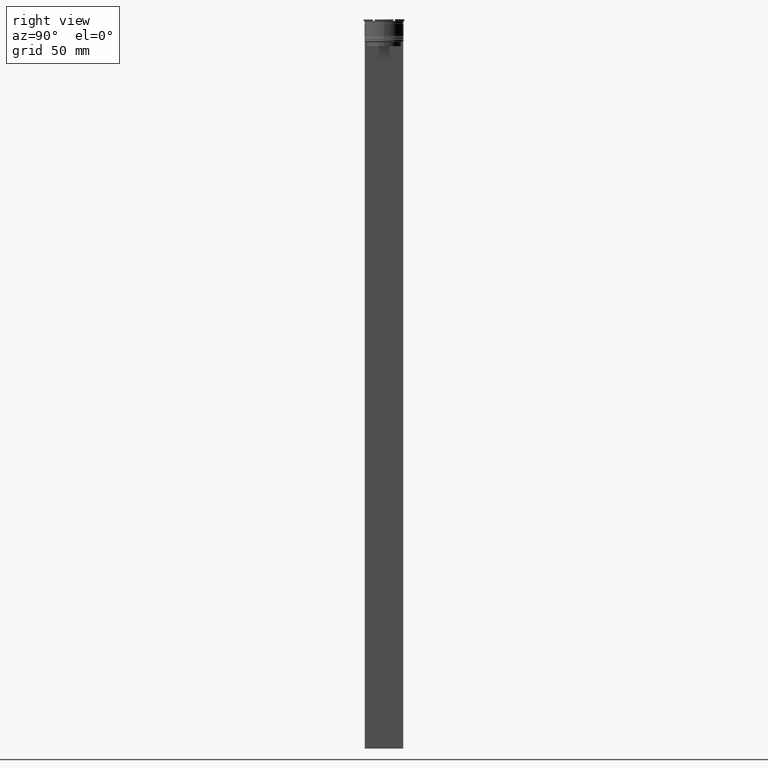
[diagram: clean part render]
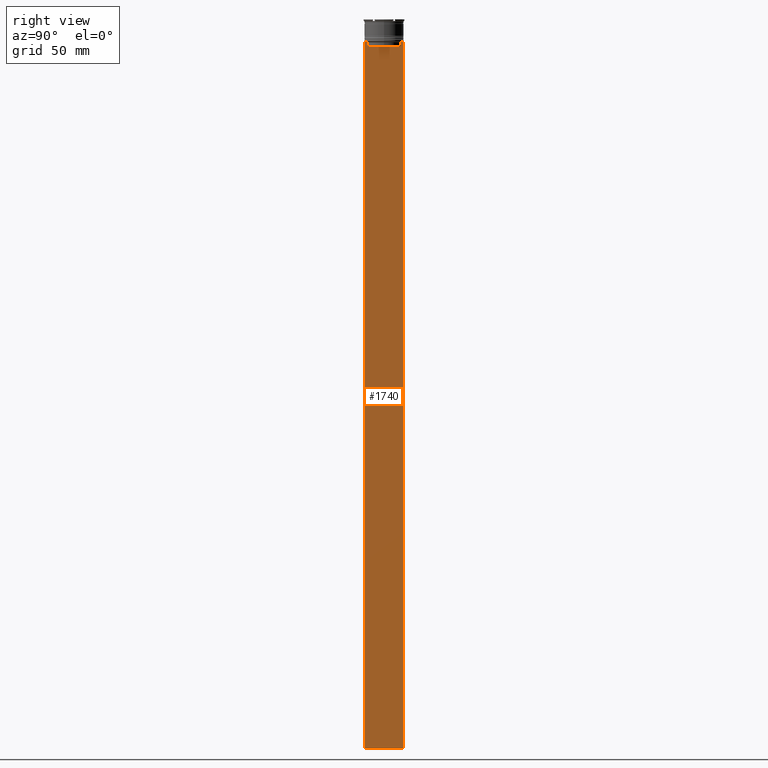
[diagram: same view with one face highlighted and labeled with its STEP entity id]
A machine part, right view. The second image highlights one B-rep face of the part: STEP entity #1740.
In plain terms, the highlighted planar face has unit normal (-1, 0, 0).
Its self-contained STEP definition (entity closure, byte-faithful):
#129 = VERTEX_POINT ( 'NONE', #724 ) ;
#168 = EDGE_CURVE ( 'NONE', #2728, #2398, #2310, .T. ) ;
#174 = CARTESIAN_POINT ( 'NONE',  ( 0.5000000000000002220, 10.88852607105296322, 0.000000000000000000 ) ) ;
#175 = CARTESIAN_POINT ( 'NONE',  ( 0.5000000000000002220, -10.88852607105296144, -17.00000000000000000 ) ) ;
#259 = VECTOR ( 'NONE', #679, 1000.000000000000000 ) ;
#280 = CARTESIAN_POINT ( 'NONE',  ( 0.5000000000000002220, 11.38902980942626719, -14.00000000000000178 ) ) ;
#289 = ORIENTED_EDGE ( 'NONE', *, *, #1927, .T. ) ;
#341 = CARTESIAN_POINT ( 'NONE',  ( 0.5000000000000002220, 12.24999999999999289, -14.00000000000000178 ) ) ;
#370 = LINE ( 'NONE', #2069, #756 ) ;
#404 = DIRECTION ( 'NONE',  ( 0.000000000000000000, -1.000000000000000000, 0.000000000000000000 ) ) ;
#472 = ORIENTED_EDGE ( 'NONE', *, *, #894, .T. ) ;
#480 = VERTEX_POINT ( 'NONE', #175 ) ;
#495 = CARTESIAN_POINT ( 'NONE',  ( 0.5000000000000002220, 10.88852607105296144, -17.00000000000000000 ) ) ;
#502 = EDGE_CURVE ( 'NONE', #1333, #1883, #867, .T. ) ;
#581 = ORIENTED_EDGE ( 'NONE', *, *, #1653, .T. ) ;
#609 = VECTOR ( 'NONE', #2724, 1000.000000000000000 ) ;
#617 = VECTOR ( 'NONE', #1195, 1000.000000000000000 ) ;
#620 = CARTESIAN_POINT ( 'NONE',  ( 0.5000000000000002220, 10.88852607105296322, -14.50000000000000000 ) ) ;
#628 = CARTESIAN_POINT ( 'NONE',  ( 0.5000000000000002220, 12.24999999999999289, 10.52039967047845792 ) ) ;
#648 = EDGE_CURVE ( 'NONE', #129, #2728, #1913, .T. ) ;
#656 = EDGE_LOOP ( 'NONE', ( #2348, #869, #2638, #1155, #581, #1534, #472, #1914, #289, #1100 ) ) ;
#679 = DIRECTION ( 'NONE',  ( 0.000000000000000000, 1.000000000000000000, 0.000000000000000000 ) ) ;
#710 = DIRECTION ( 'NONE',  ( 0.000000000000000000, -1.000000000000000000, 0.000000000000000000 ) ) ;
#722 = CARTESIAN_POINT ( 'NONE',  ( 0.5000000000000002220, 10.88852607105296322, -14.50000000000000000 ) ) ;
#724 = CARTESIAN_POINT ( 'NONE',  ( 0.5000000000000002220, 11.38902980942626719, -14.00000000000000178 ) ) ;
#732 = CARTESIAN_POINT ( 'NONE',  ( 0.5000000000000002220, -12.25000000000000711, 10.52039967047845792 ) ) ;
#756 = VECTOR ( 'NONE', #1223, 1000.000000000000000 ) ;
#858 = EDGE_CURVE ( 'NONE', #2100, #2347, #1188, .T. ) ;
#867 = LINE ( 'NONE', #628, #2009 ) ;
#869 = ORIENTED_EDGE ( 'NONE', *, *, #648, .T. ) ;
#891 = CARTESIAN_POINT ( 'NONE',  ( 0.5000000000000002220, -12.25000000000000711, -464.0000000000000000 ) ) ;
#894 = EDGE_CURVE ( 'NONE', #2578, #2100, #2541, .T. ) ;
#952 = B_SPLINE_CURVE_WITH_KNOTS ( 'NONE', 3,
 ( #1525, #2107, #1031, #1894 ),
 .UNSPECIFIED., .F., .F.,
 ( 4, 4 ),
 ( 0.05041323384703228633, 0.05112713601261608537 ),
 .UNSPECIFIED. ) ;
#953 = CARTESIAN_POINT ( 'NONE',  ( 0.5000000000000002220, -12.25000000000000711, -14.00000000000000178 ) ) ;
#965 = CARTESIAN_POINT ( 'NONE',  ( 0.5000000000000002220, -10.88852607105296322, -14.50000000000000000 ) ) ;
#1031 = CARTESIAN_POINT ( 'NONE',  ( 0.5000000000000002220, -11.22219891450652973, -14.16667035398018903 ) ) ;
#1040 = DIRECTION ( 'NONE',  ( 0.000000000000000000, 0.000000000000000000, -1.000000000000000000 ) ) ;
#1065 = VECTOR ( 'NONE', #404, 1000.000000000000000 ) ;
#1075 = DIRECTION ( 'NONE',  ( 0.000000000000000000, 0.000000000000000000, 1.000000000000000000 ) ) ;
#1100 = ORIENTED_EDGE ( 'NONE', *, *, #502, .F. ) ;
#1102 = CARTESIAN_POINT ( 'NONE',  ( 0.5000000000000002220, 11.22219891375843304, -14.16667035472756808 ) ) ;
#1129 = LINE ( 'NONE', #891, #259 ) ;
#1149 = CARTESIAN_POINT ( 'NONE',  ( 0.5000000000000002220, -12.25000000000000711, -464.0000000000000000 ) ) ;
#1155 = ORIENTED_EDGE ( 'NONE', *, *, #1480, .T. ) ;
#1172 = CARTESIAN_POINT ( 'NONE',  ( 0.5000000000000002220, 12.24999999999999289, -464.0000000000000000 ) ) ;
#1188 = LINE ( 'NONE', #732, #1379 ) ;
#1195 = DIRECTION ( 'NONE',  ( 0.000000000000000000, -1.000000000000000000, 0.000000000000000000 ) ) ;
#1197 = EDGE_CURVE ( 'NONE', #1333, #129, #2246, .T. ) ;
#1223 = DIRECTION ( 'NONE',  ( -0.000000000000000000, -0.000000000000000000, 1.000000000000000000 ) ) ;
#1231 = VERTEX_POINT ( 'NONE', #965 ) ;
#1233 = CARTESIAN_POINT ( 'NONE',  ( 0.5000000000000002220, -12.25000000000000711, -14.00000000000000178 ) ) ;
#1333 = VERTEX_POINT ( 'NONE', #341 ) ;
#1379 = VECTOR ( 'NONE', #1591, 1000.000000000000000 ) ;
#1480 = EDGE_CURVE ( 'NONE', #2398, #480, #2623, .T. ) ;
#1510 = PLANE ( 'NONE',  #1568 ) ;
#1525 = CARTESIAN_POINT ( 'NONE',  ( 0.5000000000000002220, -10.88852607105296322, -14.50000000000000000 ) ) ;
#1534 = ORIENTED_EDGE ( 'NONE', *, *, #2785, .T. ) ;
#1568 = AXIS2_PLACEMENT_3D ( 'NONE', #1964, #2349, #1075 ) ;
#1591 = DIRECTION ( 'NONE',  ( 0.000000000000000000, 0.000000000000000000, -1.000000000000000000 ) ) ;
#1653 = EDGE_CURVE ( 'NONE', #480, #1231, #370, .T. ) ;
#1740 = ADVANCED_FACE ( 'NONE', ( #2558 ), #1510, .F. ) ;
#1883 = VERTEX_POINT ( 'NONE', #1172 ) ;
#1894 = CARTESIAN_POINT ( 'NONE',  ( 0.5000000000000002220, -11.38902980942626719, -14.00000000000000178 ) ) ;
#1913 = B_SPLINE_CURVE_WITH_KNOTS ( 'NONE', 3,
 ( #280, #1102, #2653, #722 ),
 .UNSPECIFIED., .F., .F.,
 ( 4, 4 ),
 ( 0.01935560801904634073, 0.02006307108468586772 ),
 .UNSPECIFIED. ) ;
#1914 = ORIENTED_EDGE ( 'NONE', *, *, #858, .T. ) ;
#1927 = EDGE_CURVE ( 'NONE', #2347, #1883, #1129, .T. ) ;
#1964 = CARTESIAN_POINT ( 'NONE',  ( 0.5000000000000002220, -12.25000000000000711, 10.52039967047845792 ) ) ;
#2009 = VECTOR ( 'NONE', #1040, 1000.000000000000000 ) ;
#2016 = VECTOR ( 'NONE', #710, 1000.000000000000000 ) ;
#2069 = CARTESIAN_POINT ( 'NONE',  ( 0.5000000000000002220, -10.88852607105296322, 0.000000000000000000 ) ) ;
#2100 = VERTEX_POINT ( 'NONE', #1233 ) ;
#2107 = CARTESIAN_POINT ( 'NONE',  ( 0.5000000000000002220, -11.05536450423839057, -14.33333718996393280 ) ) ;
#2246 = LINE ( 'NONE', #953, #617 ) ;
#2310 = LINE ( 'NONE', #174, #609 ) ;
#2347 = VERTEX_POINT ( 'NONE', #1149 ) ;
#2348 = ORIENTED_EDGE ( 'NONE', *, *, #1197, .T. ) ;
#2349 = DIRECTION ( 'NONE',  ( -1.000000000000000000, 0.000000000000000000, 0.000000000000000000 ) ) ;
#2398 = VERTEX_POINT ( 'NONE', #495 ) ;
#2414 = CARTESIAN_POINT ( 'NONE',  ( 0.5000000000000002220, 10.90000000000000213, -17.00000000000000000 ) ) ;
#2541 = LINE ( 'NONE', #2568, #1065 ) ;
#2558 = FACE_OUTER_BOUND ( 'NONE', #656, .T. ) ;
#2568 = CARTESIAN_POINT ( 'NONE',  ( 0.5000000000000002220, -12.25000000000000711, -14.00000000000000178 ) ) ;
#2578 = VERTEX_POINT ( 'NONE', #2705 ) ;
#2623 = LINE ( 'NONE', #2414, #2016 ) ;
#2638 = ORIENTED_EDGE ( 'NONE', *, *, #168, .T. ) ;
#2653 = CARTESIAN_POINT ( 'NONE',  ( 0.5000000000000002220, 11.05536450345590538, -14.33333719074559376 ) ) ;
#2705 = CARTESIAN_POINT ( 'NONE',  ( 0.5000000000000002220, -11.38902980942626719, -14.00000000000000178 ) ) ;
#2724 = DIRECTION ( 'NONE',  ( 0.000000000000000000, 0.000000000000000000, -1.000000000000000000 ) ) ;
#2728 = VERTEX_POINT ( 'NONE', #620 ) ;
#2785 = EDGE_CURVE ( 'NONE', #1231, #2578, #952, .T. ) ;